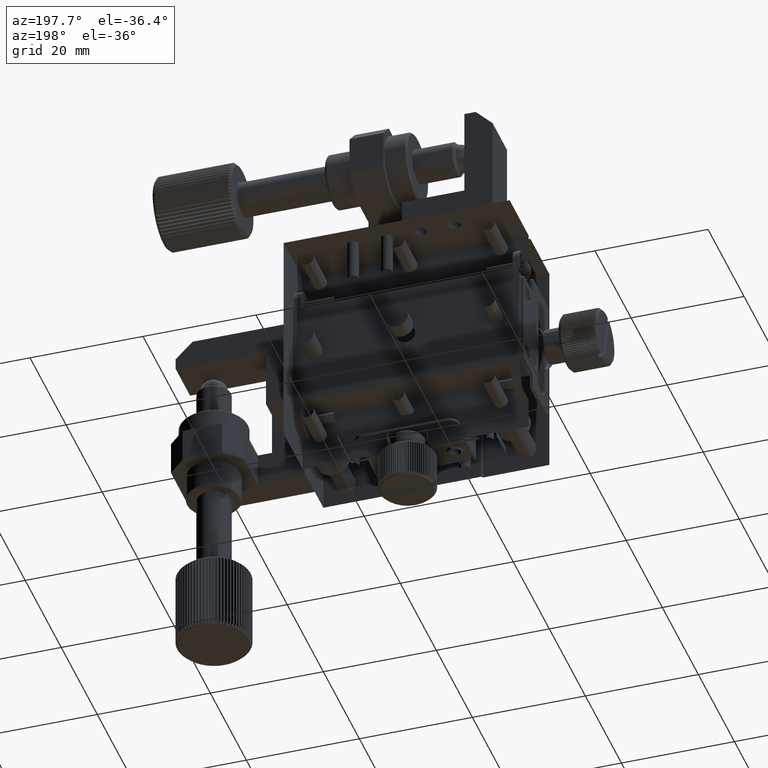
[diagram: clean part render]
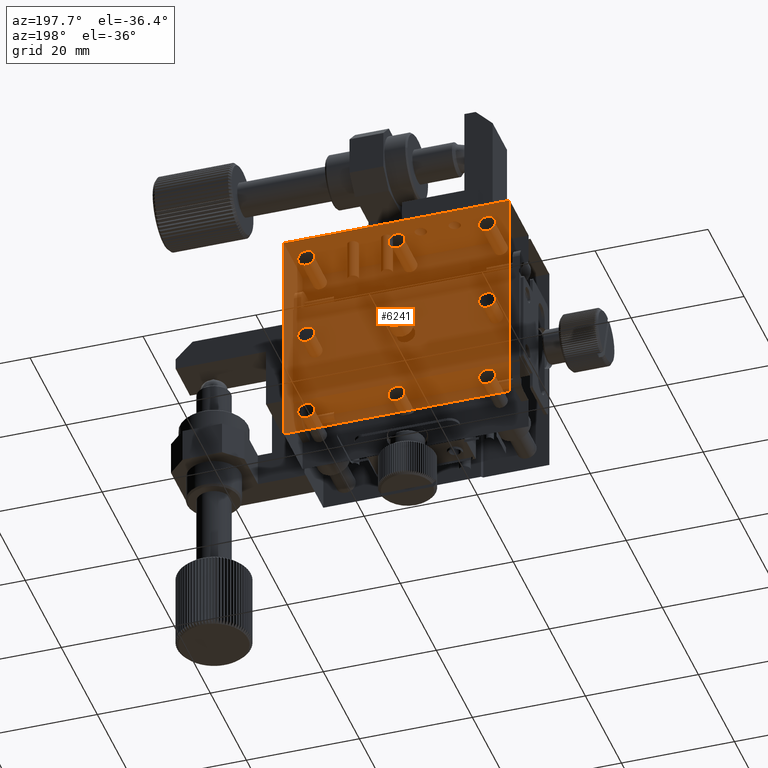
[diagram: same view with one face highlighted and labeled with its STEP entity id]
A machine part, auxiliary view. The second image highlights one B-rep face of the part: STEP entity #6241.
In plain terms, the highlighted planar face has unit normal (-0, -1, -0).
Its self-contained STEP definition (entity closure, byte-faithful):
#352 = FACE_BOUND ( 'NONE', #26748, .T. ) ;
#462 = VERTEX_POINT ( 'NONE', #33224 ) ;
#528 = VERTEX_POINT ( 'NONE', #2197 ) ;
#604 = FACE_BOUND ( 'NONE', #40320, .T. ) ;
#641 = DIRECTION ( 'NONE',  ( -1.000000000000000000, 4.160239241780394047E-32, 2.764684671113566831E-50 ) ) ;
#959 = VERTEX_POINT ( 'NONE', #3048 ) ;
#1393 = DIRECTION ( 'NONE',  ( 0.000000000000000000, 0.000000000000000000, 1.000000000000000000 ) ) ;
#1547 = CARTESIAN_POINT ( 'NONE',  ( 5.445643935786392831E-11, 22.00000000000000000, -40.00000000000004263 ) ) ;
#1814 = VECTOR ( 'NONE', #4831, 1000.000000000000000 ) ;
#2171 = DIRECTION ( 'NONE',  ( 0.000000000000000000, 0.000000000000000000, 1.000000000000000000 ) ) ;
#2197 = CARTESIAN_POINT ( 'NONE',  ( 20.00000000005445600, 21.99999999999999289, -18.00000000000005684 ) ) ;
#2397 = DIRECTION ( 'NONE',  ( 0.000000000000000000, 1.000000000000000000, -0.000000000000000000 ) ) ;
#2517 = AXIS2_PLACEMENT_3D ( 'NONE', #20916, #35991, #42899 ) ;
#2651 = VERTEX_POINT ( 'NONE', #46370 ) ;
#2825 = CARTESIAN_POINT ( 'NONE',  ( 5.445643892418305931E-11, 22.00000000000000000, -40.00000000000002132 ) ) ;
#3048 = CARTESIAN_POINT ( 'NONE',  ( 40.00000000005445600, 22.00000000000000000, -40.00000000000004263 ) ) ;
#3165 = EDGE_LOOP ( 'NONE', ( #7850 ) ) ;
#3445 = CIRCLE ( 'NONE', #16409, 1.500000000021373125 ) ;
#3739 = DIRECTION ( 'NONE',  ( 0.000000000000000000, 1.000000000000000000, -0.000000000000000000 ) ) ;
#4831 = DIRECTION ( 'NONE',  ( -0.000000000000000000, -6.645494430580889367E-19, 1.000000000000000000 ) ) ;
#5181 = EDGE_CURVE ( 'NONE', #528, #528, #25389, .T. ) ;
#5972 = CARTESIAN_POINT ( 'NONE',  ( 36.00000000005446310, 22.00000000002915002, -4.000000000000045297 ) ) ;
#5980 = CARTESIAN_POINT ( 'NONE',  ( 5.445643935786392831E-11, 22.00000000000000000, -0.5000000000000559552 ) ) ;
#6241 = ADVANCED_FACE ( 'NONE', ( #18986, #44082, #352, #11559, #33365, #47197, #8215, #604, #18743, #11792 ), #15171, .T. ) ;
#6429 = DIRECTION ( 'NONE',  ( 0.000000000000000000, 6.645494430580889367E-19, -1.000000000000000000 ) ) ;
#7560 = CARTESIAN_POINT ( 'NONE',  ( 20.00000000005445600, 22.00000000004689937, -36.00000000000005684 ) ) ;
#7850 = ORIENTED_EDGE ( 'NONE', *, *, #38695, .T. ) ;
#7972 = DIRECTION ( 'NONE',  ( 0.000000000000000000, 6.645494430580889367E-19, -1.000000000000000000 ) ) ;
#8215 = FACE_BOUND ( 'NONE', #42225, .T. ) ;
#8922 = ORIENTED_EDGE ( 'NONE', *, *, #36323, .T. ) ;
#9067 = ORIENTED_EDGE ( 'NONE', *, *, #19620, .T. ) ;
#9096 = VERTEX_POINT ( 'NONE', #23682 ) ;
#9284 = EDGE_LOOP ( 'NONE', ( #9067 ) ) ;
#9561 = CIRCLE ( 'NONE', #15676, 1.500000000021373125 ) ;
#9810 = ORIENTED_EDGE ( 'NONE', *, *, #26525, .T. ) ;
#11426 = VERTEX_POINT ( 'NONE', #15040 ) ;
#11559 = FACE_BOUND ( 'NONE', #22914, .T. ) ;
#11792 = FACE_OUTER_BOUND ( 'NONE', #19499, .T. ) ;
#11943 = AXIS2_PLACEMENT_3D ( 'NONE', #22595, #3739, #18766 ) ;
#12202 = CARTESIAN_POINT ( 'NONE',  ( 4.000000000054446225, 22.00000000012329338, -18.49999999992184030 ) ) ;
#12313 = DIRECTION ( 'NONE',  ( 0.000000000000000000, 0.000000000000000000, 1.000000000000000000 ) ) ;
#12700 = EDGE_CURVE ( 'NONE', #30173, #30173, #27437, .T. ) ;
#13301 = EDGE_LOOP ( 'NONE', ( #35197 ) ) ;
#13935 = ORIENTED_EDGE ( 'NONE', *, *, #40361, .T. ) ;
#14928 = DIRECTION ( 'NONE',  ( -4.160239241780394047E-32, -1.000000000000000000, -6.645494430580889367E-19 ) ) ;
#15040 = CARTESIAN_POINT ( 'NONE',  ( 4.000000000054446225, 22.00000000002915002, -2.499999999978672172 ) ) ;
#15074 = EDGE_CURVE ( 'NONE', #30879, #30879, #19138, .T. ) ;
#15171 = PLANE ( 'NONE',  #20134 ) ;
#15498 = VERTEX_POINT ( 'NONE', #23505 ) ;
#15676 = AXIS2_PLACEMENT_3D ( 'NONE', #5972, #2397, #2171 ) ;
#15846 = VECTOR ( 'NONE', #6429, 1000.000000000000000 ) ;
#16409 = AXIS2_PLACEMENT_3D ( 'NONE', #16427, #16674, #1393 ) ;
#16427 = CARTESIAN_POINT ( 'NONE',  ( 4.000000000054446225, 22.00000000002915002, -4.000000000000045297 ) ) ;
#16674 = DIRECTION ( 'NONE',  ( 0.000000000000000000, 1.000000000000000000, -0.000000000000000000 ) ) ;
#16749 = CARTESIAN_POINT ( 'NONE',  ( 36.00000000005446310, 22.00000000012329338, -18.49999999992184030 ) ) ;
#16891 = CARTESIAN_POINT ( 'NONE',  ( 36.00000000005446310, 22.00000000004689937, -36.00000000000005684 ) ) ;
#17749 = DIRECTION ( 'NONE',  ( 0.000000000000000000, 1.000000000000000000, -0.000000000000000000 ) ) ;
#17861 = DIRECTION ( 'NONE',  ( 0.000000000000000000, 0.000000000000000000, 1.000000000000000000 ) ) ;
#18743 = FACE_BOUND ( 'NONE', #20480, .T. ) ;
#18766 = DIRECTION ( 'NONE',  ( 0.000000000000000000, 0.000000000000000000, 1.000000000000000000 ) ) ;
#18986 = FACE_BOUND ( 'NONE', #26226, .T. ) ;
#19138 = CIRCLE ( 'NONE', #30637, 1.500000000021373125 ) ;
#19499 = EDGE_LOOP ( 'NONE', ( #46434, #13935, #32648, #8922 ) ) ;
#19620 = EDGE_CURVE ( 'NONE', #9096, #9096, #40198, .T. ) ;
#19634 = CARTESIAN_POINT ( 'NONE',  ( 4.000000000054446225, 22.00000000004689937, -34.49999999997868372 ) ) ;
#20116 = LINE ( 'NONE', #34724, #1814 ) ;
#20134 = AXIS2_PLACEMENT_3D ( 'NONE', #21873, #14928, #7972 ) ;
#20480 = EDGE_LOOP ( 'NONE', ( #29882 ) ) ;
#20865 = CARTESIAN_POINT ( 'NONE',  ( 36.00000000005446310, 22.00000000012329338, -20.00000000000005684 ) ) ;
#20916 = CARTESIAN_POINT ( 'NONE',  ( 20.00000000005445600, 21.99999999999999289, -20.00000000000005684 ) ) ;
#21863 = VECTOR ( 'NONE', #641, 1000.000000000000000 ) ;
#21873 = CARTESIAN_POINT ( 'NONE',  ( 5.445643935786392831E-11, 22.00000000000000000, -0.5000000000000559552 ) ) ;
#22072 = AXIS2_PLACEMENT_3D ( 'NONE', #26117, #43795, #36418 ) ;
#22157 = DIRECTION ( 'NONE',  ( 0.000000000000000000, 1.000000000000000000, -0.000000000000000000 ) ) ;
#22484 = ORIENTED_EDGE ( 'NONE', *, *, #12700, .T. ) ;
#22595 = CARTESIAN_POINT ( 'NONE',  ( 20.00000000005445600, 22.00000000002915002, -4.000000000000045297 ) ) ;
#22839 = DIRECTION ( 'NONE',  ( 0.000000000000000000, 1.000000000000000000, -0.000000000000000000 ) ) ;
#22914 = EDGE_LOOP ( 'NONE', ( #22484 ) ) ;
#23434 = VECTOR ( 'NONE', #34789, 1000.000000000000000 ) ;
#23505 = CARTESIAN_POINT ( 'NONE',  ( 5.445650787944122939E-11, 22.00000000000000711, -5.550940678896979445E-14 ) ) ;
#23682 = CARTESIAN_POINT ( 'NONE',  ( 20.00000000005445600, 22.00000000002915002, -2.499999999978672172 ) ) ;
#25389 = CIRCLE ( 'NONE', #2517, 1.999999999999998224 ) ;
#25482 = AXIS2_PLACEMENT_3D ( 'NONE', #7560, #22157, #17861 ) ;
#26117 = CARTESIAN_POINT ( 'NONE',  ( 4.000000000054446225, 22.00000000012329338, -20.00000000000005684 ) ) ;
#26226 = EDGE_LOOP ( 'NONE', ( #26972 ) ) ;
#26525 = EDGE_CURVE ( 'NONE', #39453, #39453, #42836, .T. ) ;
#26748 = EDGE_LOOP ( 'NONE', ( #32674 ) ) ;
#26813 = AXIS2_PLACEMENT_3D ( 'NONE', #20865, #17749, #35014 ) ;
#26972 = ORIENTED_EDGE ( 'NONE', *, *, #31882, .T. ) ;
#27437 = CIRCLE ( 'NONE', #22072, 1.500000000078216544 ) ;
#29118 = EDGE_CURVE ( 'NONE', #959, #32665, #20116, .T. ) ;
#29650 = CARTESIAN_POINT ( 'NONE',  ( 36.00000000005446310, 22.00000000002915002, -2.499999999978672172 ) ) ;
#29882 = ORIENTED_EDGE ( 'NONE', *, *, #5181, .T. ) ;
#30173 = VERTEX_POINT ( 'NONE', #12202 ) ;
#30350 = CIRCLE ( 'NONE', #39506, 1.500000000021373125 ) ;
#30637 = AXIS2_PLACEMENT_3D ( 'NONE', #44822, #22839, #12313 ) ;
#30791 = DIRECTION ( 'NONE',  ( 0.000000000000000000, 0.000000000000000000, 1.000000000000000000 ) ) ;
#30879 = VERTEX_POINT ( 'NONE', #19634 ) ;
#31882 = EDGE_CURVE ( 'NONE', #2651, #2651, #30350, .T. ) ;
#32648 = ORIENTED_EDGE ( 'NONE', *, *, #43300, .T. ) ;
#32665 = VERTEX_POINT ( 'NONE', #41402 ) ;
#32674 = ORIENTED_EDGE ( 'NONE', *, *, #15074, .T. ) ;
#33224 = CARTESIAN_POINT ( 'NONE',  ( 20.00000000005445600, 22.00000000004689937, -34.49999999997868372 ) ) ;
#33365 = FACE_BOUND ( 'NONE', #3165, .T. ) ;
#34724 = CARTESIAN_POINT ( 'NONE',  ( 40.00000000005445600, 22.00000000000000000, -0.5000000000000559552 ) ) ;
#34789 = DIRECTION ( 'NONE',  ( 1.000000000000000000, -4.160239241780394047E-32, -2.764684671113566831E-50 ) ) ;
#35014 = DIRECTION ( 'NONE',  ( 0.000000000000000000, 0.000000000000000000, 1.000000000000000000 ) ) ;
#35031 = LINE ( 'NONE', #1547, #23434 ) ;
#35088 = DIRECTION ( 'NONE',  ( 0.000000000000000000, 1.000000000000000000, -0.000000000000000000 ) ) ;
#35197 = ORIENTED_EDGE ( 'NONE', *, *, #38184, .T. ) ;
#35991 = DIRECTION ( 'NONE',  ( 4.160239241780394047E-32, 1.000000000000000000, 6.645494430580889367E-19 ) ) ;
#36323 = EDGE_CURVE ( 'NONE', #46859, #959, #35031, .T. ) ;
#36418 = DIRECTION ( 'NONE',  ( 0.000000000000000000, 0.000000000000000000, 1.000000000000000000 ) ) ;
#37034 = VERTEX_POINT ( 'NONE', #29650 ) ;
#38184 = EDGE_CURVE ( 'NONE', #462, #462, #46079, .T. ) ;
#38695 = EDGE_CURVE ( 'NONE', #11426, #11426, #3445, .T. ) ;
#39333 = EDGE_CURVE ( 'NONE', #37034, #37034, #9561, .T. ) ;
#39453 = VERTEX_POINT ( 'NONE', #16749 ) ;
#39506 = AXIS2_PLACEMENT_3D ( 'NONE', #16891, #35088, #30791 ) ;
#40198 = CIRCLE ( 'NONE', #11943, 1.500000000021373125 ) ;
#40320 = EDGE_LOOP ( 'NONE', ( #9810 ) ) ;
#40361 = EDGE_CURVE ( 'NONE', #32665, #15498, #43409, .T. ) ;
#41402 = CARTESIAN_POINT ( 'NONE',  ( 40.00000000005445600, 22.00000000000000711, -5.554410125848933690E-14 ) ) ;
#42225 = EDGE_LOOP ( 'NONE', ( #42628 ) ) ;
#42628 = ORIENTED_EDGE ( 'NONE', *, *, #39333, .T. ) ;
#42836 = CIRCLE ( 'NONE', #26813, 1.500000000078216544 ) ;
#42899 = DIRECTION ( 'NONE',  ( 0.000000000000000000, 0.000000000000000000, 1.000000000000000000 ) ) ;
#43300 = EDGE_CURVE ( 'NONE', #15498, #46859, #45870, .T. ) ;
#43409 = LINE ( 'NONE', #43646, #21863 ) ;
#43646 = CARTESIAN_POINT ( 'NONE',  ( 5.445643935786392831E-11, 22.00000000000000000, -5.551115123125782702E-14 ) ) ;
#43795 = DIRECTION ( 'NONE',  ( 0.000000000000000000, 1.000000000000000000, -0.000000000000000000 ) ) ;
#44082 = FACE_BOUND ( 'NONE', #13301, .T. ) ;
#44822 = CARTESIAN_POINT ( 'NONE',  ( 4.000000000054446225, 22.00000000004689937, -36.00000000000005684 ) ) ;
#45870 = LINE ( 'NONE', #5980, #15846 ) ;
#46079 = CIRCLE ( 'NONE', #25482, 1.500000000021373125 ) ;
#46370 = CARTESIAN_POINT ( 'NONE',  ( 36.00000000005446310, 22.00000000004689937, -34.49999999997868372 ) ) ;
#46434 = ORIENTED_EDGE ( 'NONE', *, *, #29118, .T. ) ;
#46859 = VERTEX_POINT ( 'NONE', #2825 ) ;
#47197 = FACE_BOUND ( 'NONE', #9284, .T. ) ;